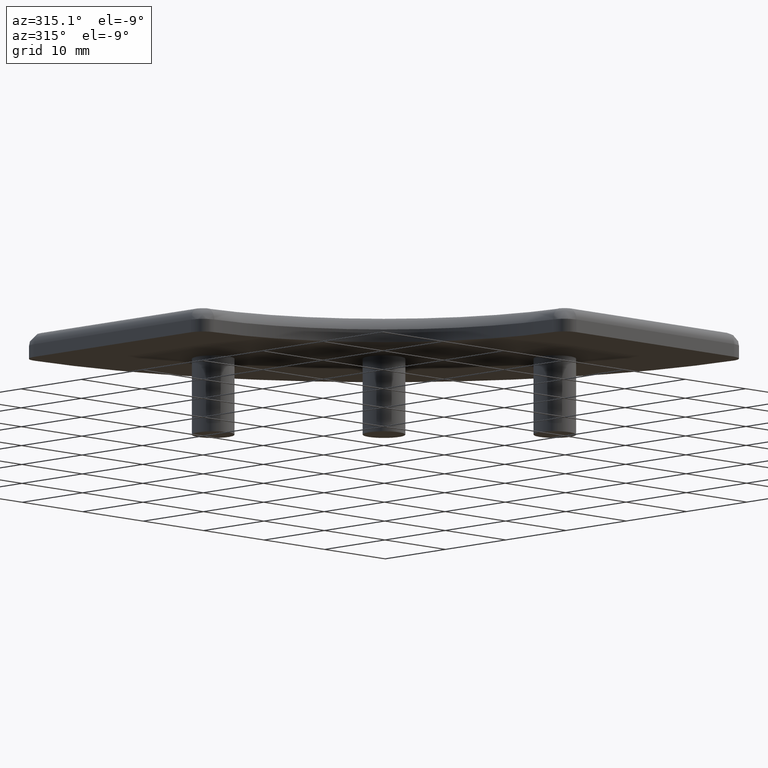
[diagram: clean part render]
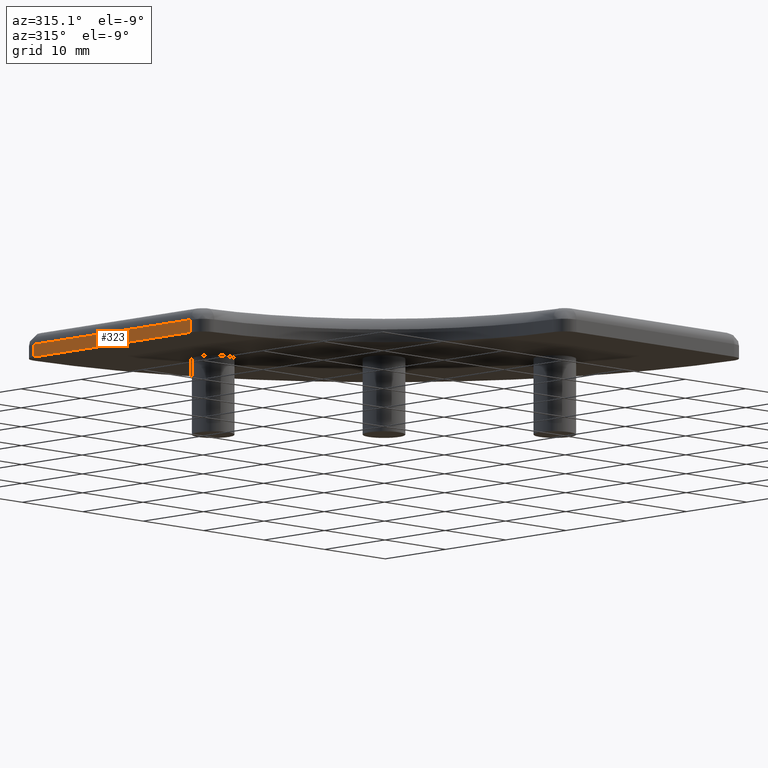
[diagram: same view with one face highlighted and labeled with its STEP entity id]
A machine part, auxiliary view. The second image highlights one B-rep face of the part: STEP entity #323.
In plain terms, the highlighted planar face has unit normal (-1, 0, 0).
Its self-contained STEP definition (entity closure, byte-faithful):
#44=CARTESIAN_POINT('',(-29.983366232540707,1.957063560705038,0.0));
#45=VERTEX_POINT('',#44);
#53=CARTESIAN_POINT('',(-29.983366232540707,27.985132103185499,0.0));
#54=VERTEX_POINT('',#53);
#55=CARTESIAN_POINT('',(-29.983366232540707,27.985132103185499,0.0));
#56=DIRECTION('',(0.0,-1.0,0.0));
#57=VECTOR('',#56,26.028068542480462);
#58=LINE('',#55,#57);
#59=EDGE_CURVE('',#54,#45,#58,.T.);
#281=CARTESIAN_POINT('',(-29.983366232540707,27.985132103185499,1.500000000000000));
#282=VERTEX_POINT('',#281);
#283=CARTESIAN_POINT('',(-29.983366232540707,27.985132103185499,0.0));
#284=DIRECTION('',(0.0,0.0,1.0));
#285=VECTOR('',#284,1.500000000000000);
#286=LINE('',#283,#285);
#287=EDGE_CURVE('',#54,#282,#286,.T.);
#300=CARTESIAN_POINT('',(-29.983366232540707,27.985132103185499,0.0));
#301=DIRECTION('',(-1.0,0.0,0.0));
#302=DIRECTION('',(0.0,-1.0,0.0));
#303=AXIS2_PLACEMENT_3D('',#300,#301,#302);
#304=PLANE('',#303);
#305=ORIENTED_EDGE('',*,*,#59,.T.);
#306=CARTESIAN_POINT('',(-29.983366232540707,1.957063560705038,1.500000000000000));
#307=VERTEX_POINT('',#306);
#308=CARTESIAN_POINT('',(-29.983366232540707,1.957063560705038,0.0));
#309=DIRECTION('',(0.0,0.0,1.0));
#310=VECTOR('',#309,1.500000000000000);
#311=LINE('',#308,#310);
#312=EDGE_CURVE('',#45,#307,#311,.T.);
#313=ORIENTED_EDGE('',*,*,#312,.T.);
#314=CARTESIAN_POINT('',(-29.983366232540707,27.985132103185499,1.500000000000000));
#315=DIRECTION('',(0.0,-1.0,0.0));
#316=VECTOR('',#315,26.028068542480462);
#317=LINE('',#314,#316);
#318=EDGE_CURVE('',#282,#307,#317,.T.);
#319=ORIENTED_EDGE('',*,*,#318,.F.);
#320=ORIENTED_EDGE('',*,*,#287,.F.);
#321=EDGE_LOOP('',(#305,#313,#319,#320));
#322=FACE_OUTER_BOUND('',#321,.T.);
#323=ADVANCED_FACE('',(#322),#304,.T.);